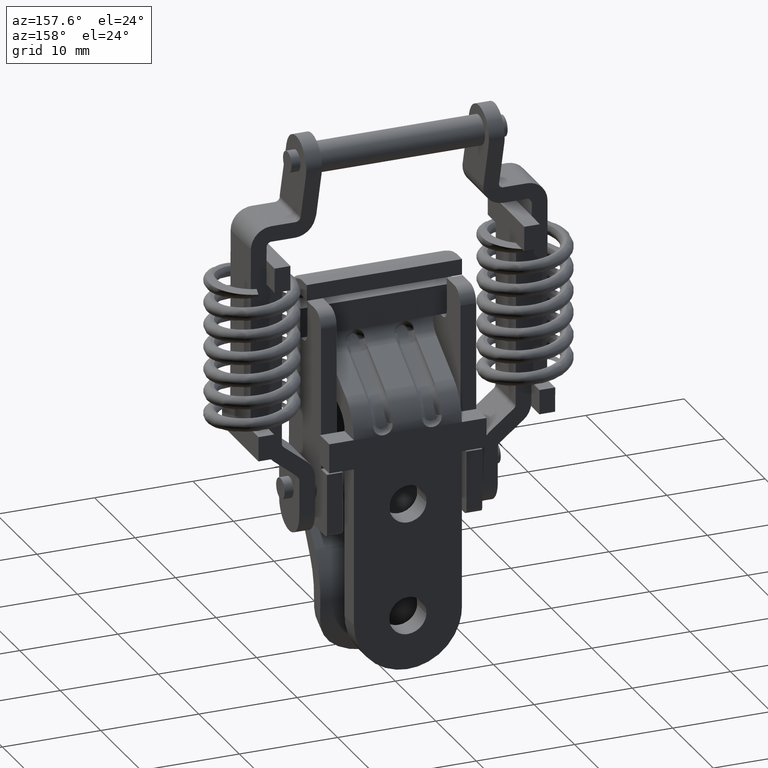
[diagram: clean part render]
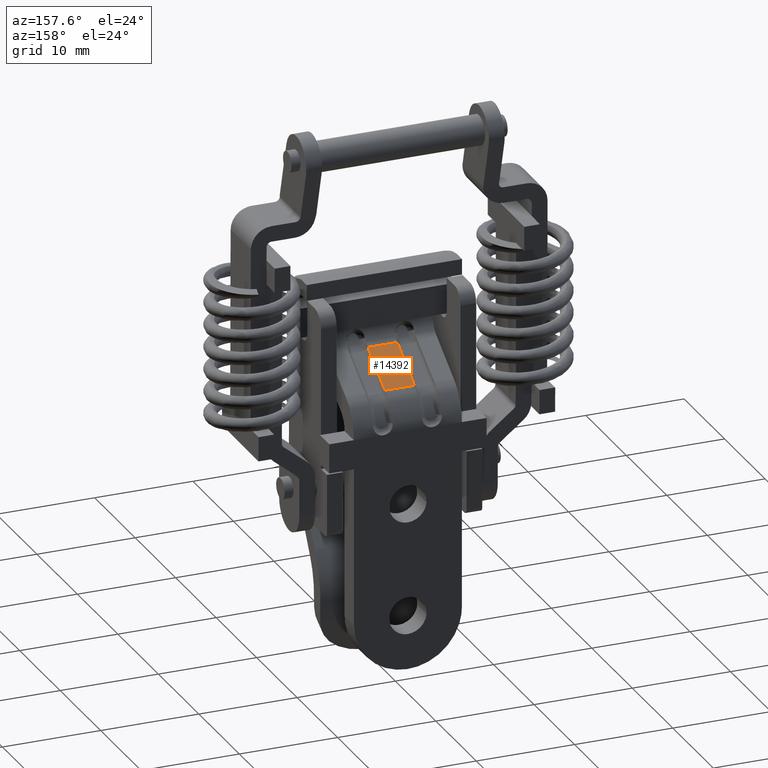
[diagram: same view with one face highlighted and labeled with its STEP entity id]
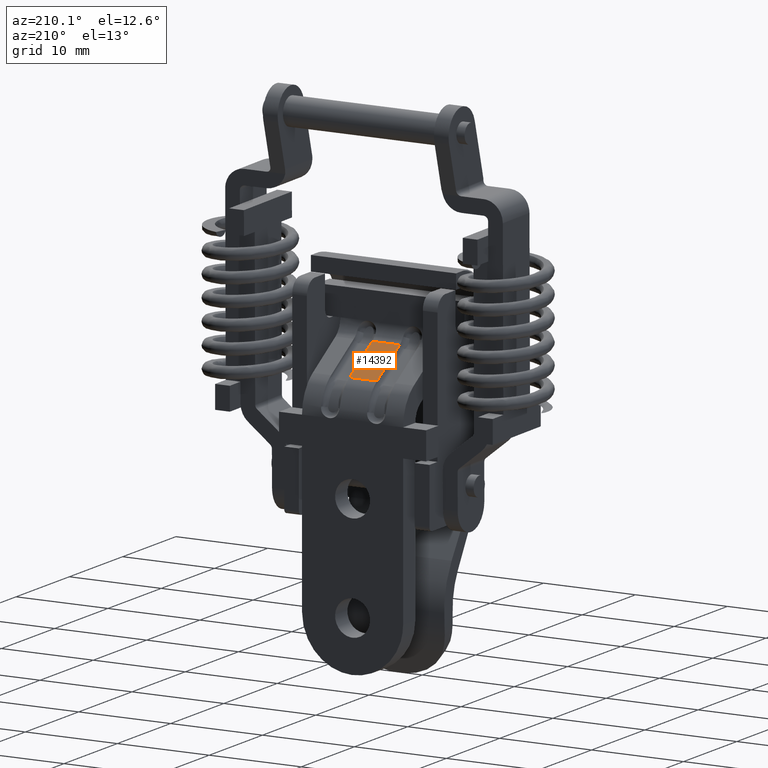
[diagram: same view with one face highlighted and labeled with its STEP entity id]
A machine part, auxiliary view. The second image highlights one B-rep face of the part: STEP entity #14392.
A second angle (auxiliary view) of the same face is appended — the face is thin or edge-on in the first view.
In plain terms, the highlighted face is a freeform B-spline surface patch.
Its self-contained STEP definition (entity closure, byte-faithful):
#11570=CARTESIAN_POINT('',(-3.162363372185025,-1.499999999999946,-22.044515879370749));
#11571=VERTEX_POINT('',#11570);
#11903=CARTESIAN_POINT('',(1.084081250197620,-1.499999999999946,-24.706790859352651));
#11904=VERTEX_POINT('',#11903);
#11920=CARTESIAN_POINT('',(1.084081250197620,-1.499999999999946,-24.706790859352651));
#11921=CARTESIAN_POINT('',(-3.162363372185025,-1.499999999999946,-22.044515879370749));
#11922=QUASI_UNIFORM_CURVE('',1,(#11920,#11921),.UNSPECIFIED.,.F.,.U.);
#11923=EDGE_CURVE('',#11904,#11571,#11922,.T.);
#12845=CARTESIAN_POINT('',(-3.162363372185025,1.499999999999946,-22.044515879370749));
#12846=VERTEX_POINT('',#12845);
#13124=CARTESIAN_POINT('',(1.084081250197620,1.499999999999946,-24.706790859352651));
#13125=VERTEX_POINT('',#13124);
#13149=CARTESIAN_POINT('',(1.084081250197620,1.499999999999946,-24.706790859352651));
#13150=CARTESIAN_POINT('',(-3.162363372185025,1.499999999999946,-22.044515879370749));
#13151=QUASI_UNIFORM_CURVE('',1,(#13149,#13150),.UNSPECIFIED.,.F.,.U.);
#13152=EDGE_CURVE('',#13125,#12846,#13151,.T.);
#14364=CARTESIAN_POINT('',(-3.162363372185025,-1.499999999999946,-22.044515879370749));
#14365=CARTESIAN_POINT('',(-3.162363372185025,1.499999999999946,-22.044515879370749));
#14366=QUASI_UNIFORM_CURVE('',1,(#14364,#14365),.UNSPECIFIED.,.F.,.U.);
#14367=EDGE_CURVE('',#11571,#12846,#14366,.T.);
#14377=CARTESIAN_POINT('',(1.296191230580369,-1.649849994185359,-24.839771539425811));
#14378=CARTESIAN_POINT('',(-3.374473390533934,-1.649849994185359,-21.911535175494979));
#14379=CARTESIAN_POINT('',(1.296191230580369,1.649850074651629,-24.839771539425811));
#14380=CARTESIAN_POINT('',(-3.374473390533934,1.649850074651629,-21.911535175494979));
#14381=B_SPLINE_SURFACE_WITH_KNOTS('',1,1,((#14377,#14379),(#14378,#14380)),.UNSPECIFIED.,.F.,.F.,.U.,(2,2),(2,2),(0.0,5.512683212916890),(0.0,3.299700068836988),.UNSPECIFIED.);
#14382=ORIENTED_EDGE('',*,*,#13152,.T.);
#14383=ORIENTED_EDGE('',*,*,#14367,.F.);
#14384=ORIENTED_EDGE('',*,*,#11923,.F.);
#14385=CARTESIAN_POINT('',(1.084081250197620,-1.499999999999946,-24.706790859352651));
#14386=CARTESIAN_POINT('',(1.084081250197620,1.499999999999946,-24.706790859352651));
#14387=QUASI_UNIFORM_CURVE('',1,(#14385,#14386),.UNSPECIFIED.,.F.,.U.);
#14388=EDGE_CURVE('',#11904,#13125,#14387,.T.);
#14389=ORIENTED_EDGE('',*,*,#14388,.T.);
#14390=EDGE_LOOP('',(#14382,#14383,#14384,#14389));
#14391=FACE_OUTER_BOUND('',#14390,.T.);
#14392=ADVANCED_FACE('',(#14391),#14381,.F.);